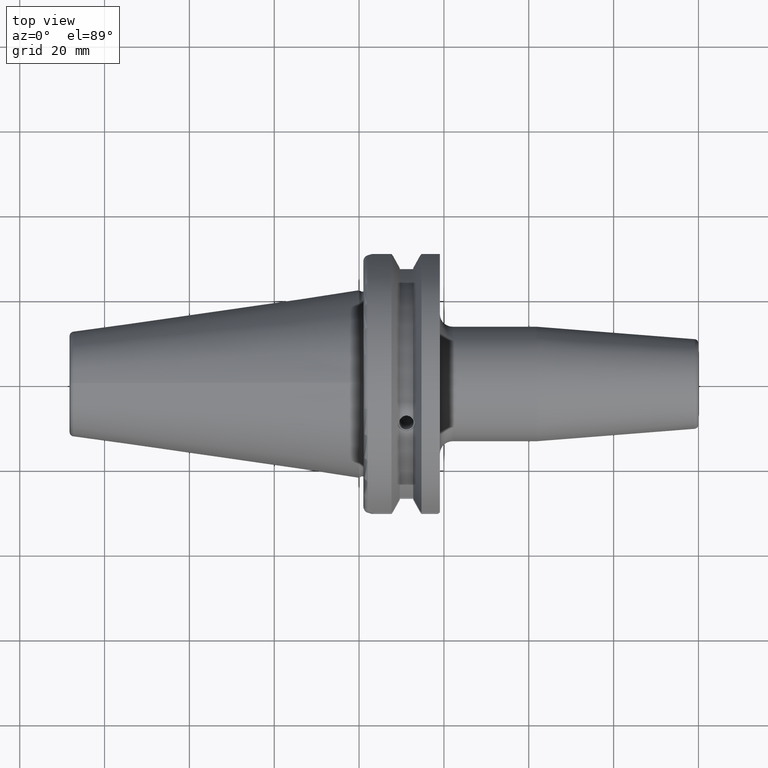
[diagram: clean part render]
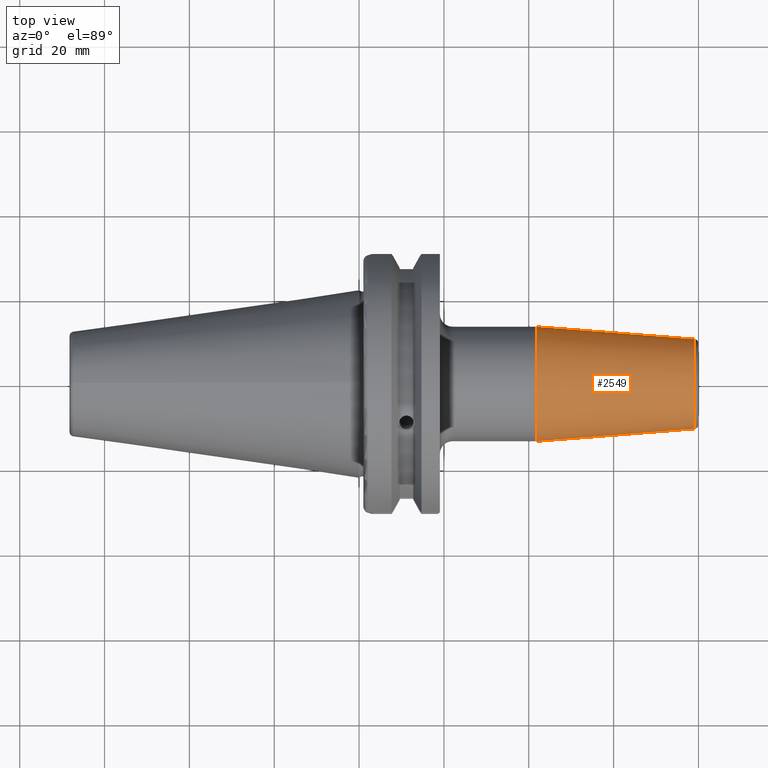
[diagram: same view with one face highlighted and labeled with its STEP entity id]
A machine part, top view. The second image highlights one B-rep face of the part: STEP entity #2549.
In plain terms, the highlighted conical surface has half-angle 4.5 deg.
Its self-contained STEP definition (entity closure, byte-faithful):
#268=DIRECTION('',(-9.969172585512E-1,7.846005099922E-2,1.690351323863E-12));
#269=VECTOR('',#268,3.731237376403E1);
#270=CARTESIAN_POINT('',(7.907846005102E1,1.057252765540E1,
-6.306936710819E-11));
#271=LINE('',#270,#269);
#272=DIRECTION('',(-9.969172585512E-1,-7.846005099922E-2,-1.690338743397E-12));
#273=VECTOR('',#272,3.731237376403E1);
#274=CARTESIAN_POINT('',(7.907846005102E1,-1.057252765540E1,
6.306889770111E-11));
#275=LINE('',#274,#273);
#276=CARTESIAN_POINT('',(7.907846005100E1,0.E0,0.E0));
#277=DIRECTION('',(-1.E0,0.E0,0.E0));
#278=DIRECTION('',(0.E0,-1.E0,0.E0));
#279=AXIS2_PLACEMENT_3D('',#276,#277,#278);
#291=CARTESIAN_POINT('',(4.188111068815E1,0.E0,0.E0));
#292=DIRECTION('',(1.E0,0.E0,0.E0));
#293=DIRECTION('',(0.E0,1.E0,0.E0));
#294=AXIS2_PLACEMENT_3D('',#291,#292,#293);
#2055=CARTESIAN_POINT('',(4.188111068815E1,1.350005840383E1,0.E0));
#2056=CARTESIAN_POINT('',(4.188111068815E1,-1.350005840383E1,0.E0));
#2057=VERTEX_POINT('',#2055);
#2058=VERTEX_POINT('',#2056);
#2087=CARTESIAN_POINT('',(7.907846005100E1,1.057252765541E1,0.E0));
#2088=CARTESIAN_POINT('',(7.907846005100E1,-1.057252765541E1,0.E0));
#2089=VERTEX_POINT('',#2087);
#2090=VERTEX_POINT('',#2088);
#2536=CARTESIAN_POINT('',(6.047978536957E1,0.E0,0.E0));
#2537=DIRECTION('',(-1.E0,0.E0,0.E0));
#2538=DIRECTION('',(0.E0,1.E0,0.E0));
#2539=AXIS2_PLACEMENT_3D('',#2536,#2537,#2538);
#2540=CONICAL_SURFACE('',#2539,1.203629302962E1,4.500054902266E0);
#2542=ORIENTED_EDGE('',*,*,#2541,.F.);
#2543=ORIENTED_EDGE('',*,*,#2531,.T.);
#2545=ORIENTED_EDGE('',*,*,#2544,.F.);
#2546=ORIENTED_EDGE('',*,*,#2527,.F.);
#2547=EDGE_LOOP('',(#2542,#2543,#2545,#2546));
#2548=FACE_OUTER_BOUND('',#2547,.F.);
#2549=ADVANCED_FACE('',(#2548),#2540,.T.);
#280=CIRCLE('',#279,1.057252765541E1);
#295=CIRCLE('',#294,1.350005840383E1);
#2527=EDGE_CURVE('',#2089,#2057,#271,.T.);
#2531=EDGE_CURVE('',#2090,#2058,#275,.T.);
#2541=EDGE_CURVE('',#2090,#2089,#280,.T.);
#2544=EDGE_CURVE('',#2057,#2058,#295,.T.);